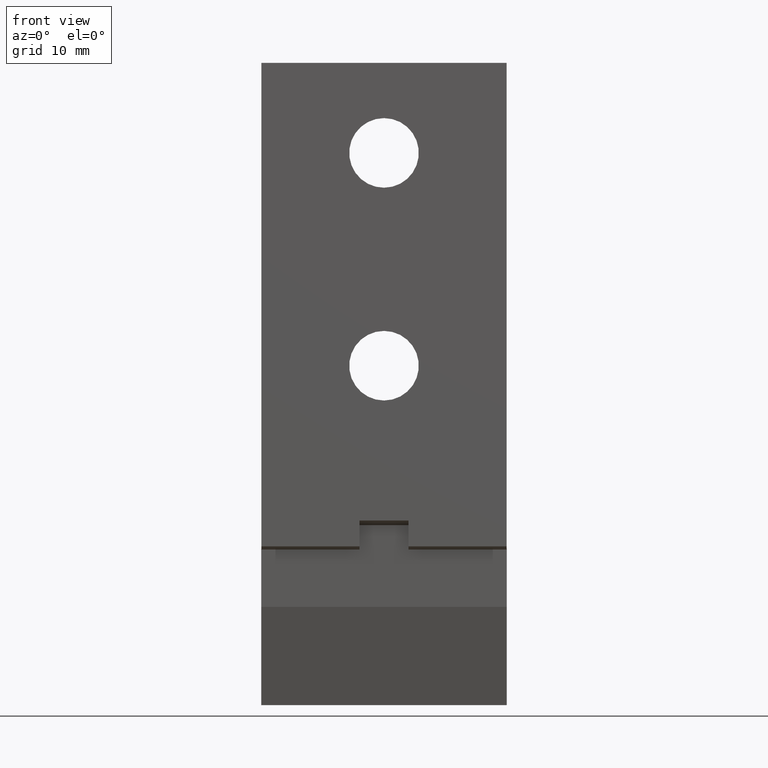
[diagram: clean part render]
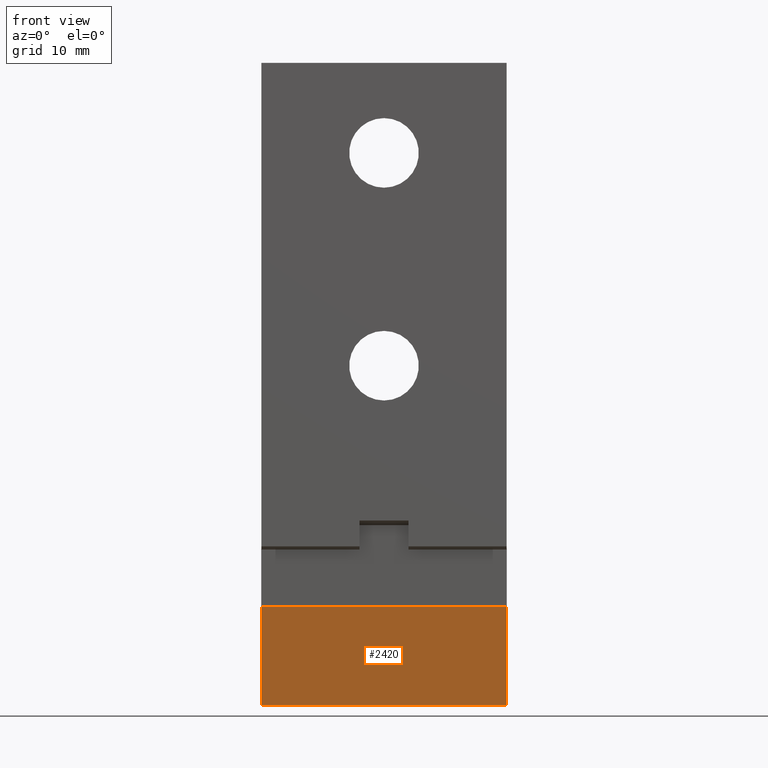
[diagram: same view with one face highlighted and labeled with its STEP entity id]
A machine part, front view. The second image highlights one B-rep face of the part: STEP entity #2420.
In plain terms, the highlighted planar face has unit normal (0, -0.9659, -0.2588).
Its self-contained STEP definition (entity closure, byte-faithful):
#164=DIRECTION('',(-1.E0,0.E0,0.E0));
#165=VECTOR('',#164,1.181102362205E0);
#166=CARTESIAN_POINT('',(5.905511811024E-1,4.000000000001E-2,
-2.617559055118E0));
#167=LINE('',#166,#165);
#1076=DIRECTION('',(1.E0,0.E0,0.E0));
#1077=VECTOR('',#1076,1.181102362205E0);
#1078=CARTESIAN_POINT('',(-5.905511811024E-1,1.665901696525E-1,-3.09E0));
#1079=LINE('',#1078,#1077);
#1104=DIRECTION('',(0.E0,-2.588190451025E-1,9.659258262891E-1));
#1105=VECTOR('',#1104,4.891068568867E-1);
#1106=CARTESIAN_POINT('',(5.905511811024E-1,1.665901696525E-1,-3.09E0));
#1107=LINE('',#1106,#1105);
#1223=DIRECTION('',(0.E0,2.588190451025E-1,-9.659258262891E-1));
#1224=VECTOR('',#1223,4.891068568867E-1);
#1225=CARTESIAN_POINT('',(-5.905511811024E-1,4.000000000001E-2,
-2.617559055118E0));
#1226=LINE('',#1225,#1224);
#1428=CARTESIAN_POINT('',(-5.905511811024E-1,1.665901696525E-1,-3.09E0));
#1429=CARTESIAN_POINT('',(5.905511811024E-1,1.665901696525E-1,-3.09E0));
#1430=VERTEX_POINT('',#1428);
#1431=VERTEX_POINT('',#1429);
#1537=CARTESIAN_POINT('',(-5.905511811024E-1,4.000000000001E-2,
-2.617559055118E0));
#1538=VERTEX_POINT('',#1537);
#1539=CARTESIAN_POINT('',(5.905511811024E-1,4.000000000001E-2,
-2.617559055118E0));
#1540=VERTEX_POINT('',#1539);
#2407=CARTESIAN_POINT('',(5.905511811024E-1,1.665901696525E-1,-3.09E0));
#2408=DIRECTION('',(0.E0,-9.659258262891E-1,-2.588190451025E-1));
#2409=DIRECTION('',(0.E0,-2.588190451025E-1,9.659258262891E-1));
#2410=AXIS2_PLACEMENT_3D('',#2407,#2408,#2409);
#2411=PLANE('',#2410);
#2413=ORIENTED_EDGE('',*,*,#2412,.F.);
#2414=ORIENTED_EDGE('',*,*,#2392,.F.);
#2416=ORIENTED_EDGE('',*,*,#2415,.F.);
#2417=ORIENTED_EDGE('',*,*,#1622,.F.);
#2418=EDGE_LOOP('',(#2413,#2414,#2416,#2417));
#2419=FACE_OUTER_BOUND('',#2418,.F.);
#2420=ADVANCED_FACE('',(#2419),#2411,.T.);
#1622=EDGE_CURVE('',#1540,#1538,#167,.T.);
#2392=EDGE_CURVE('',#1430,#1431,#1079,.T.);
#2412=EDGE_CURVE('',#1431,#1540,#1107,.T.);
#2415=EDGE_CURVE('',#1538,#1430,#1226,.T.);